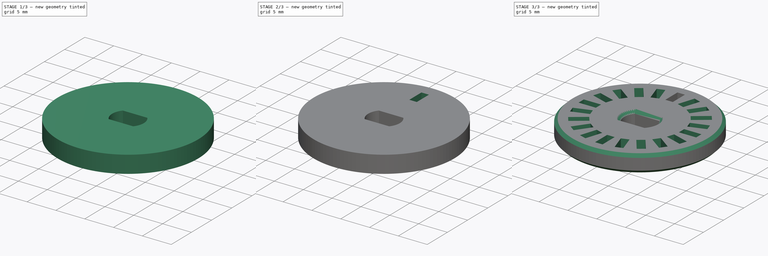
[diagram: build sequence overview — one tinted view per stage of 3, left to right]
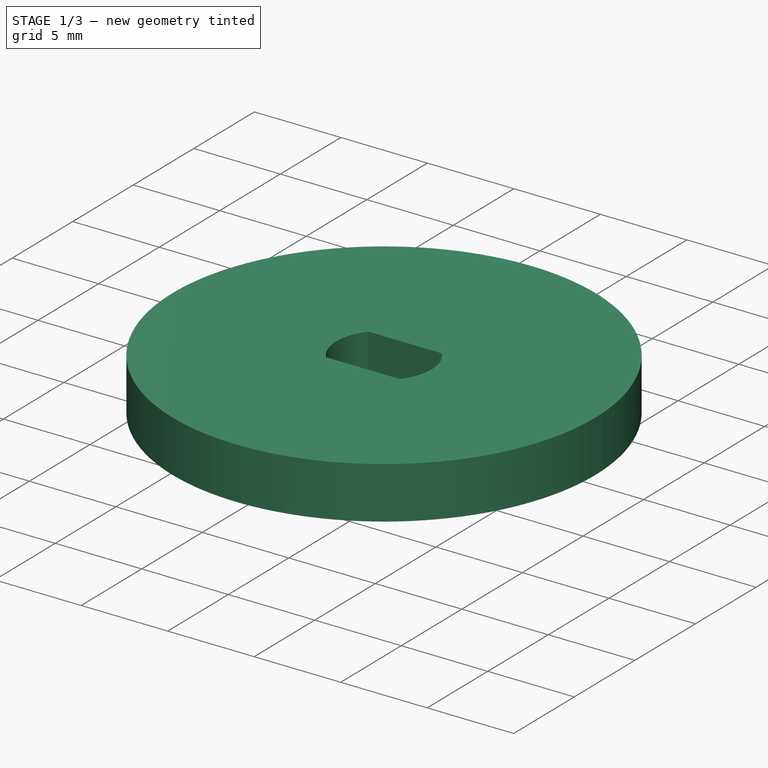
[diagram: stage 1 of 3 — iso view after this stage's code; geometry added in this stage tinted green]
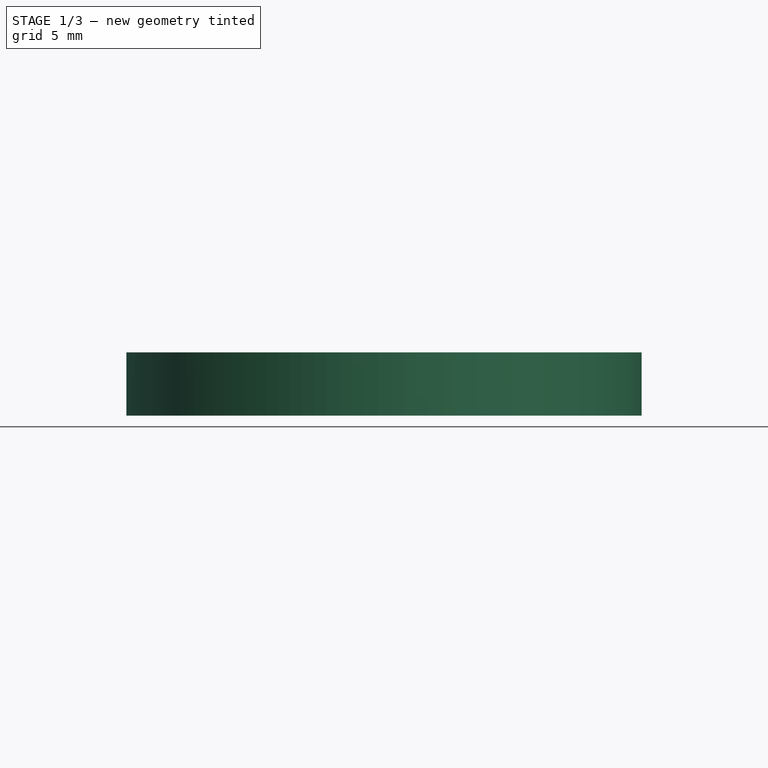
[diagram: stage 1 of 3 — front view after this stage's code; geometry added in this stage tinted green]
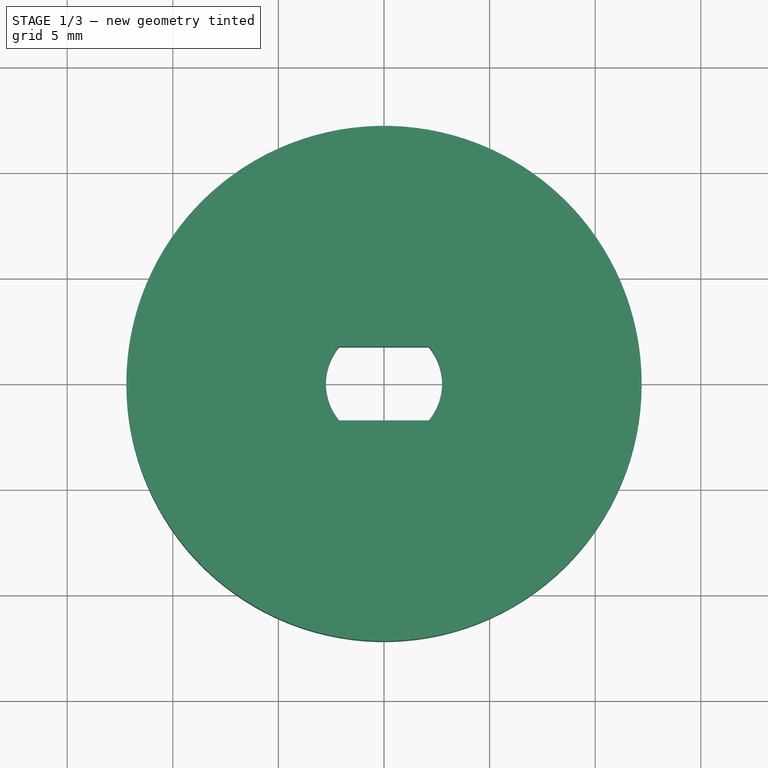
[diagram: stage 1 of 3 — top view after this stage's code; geometry added in this stage tinted green]
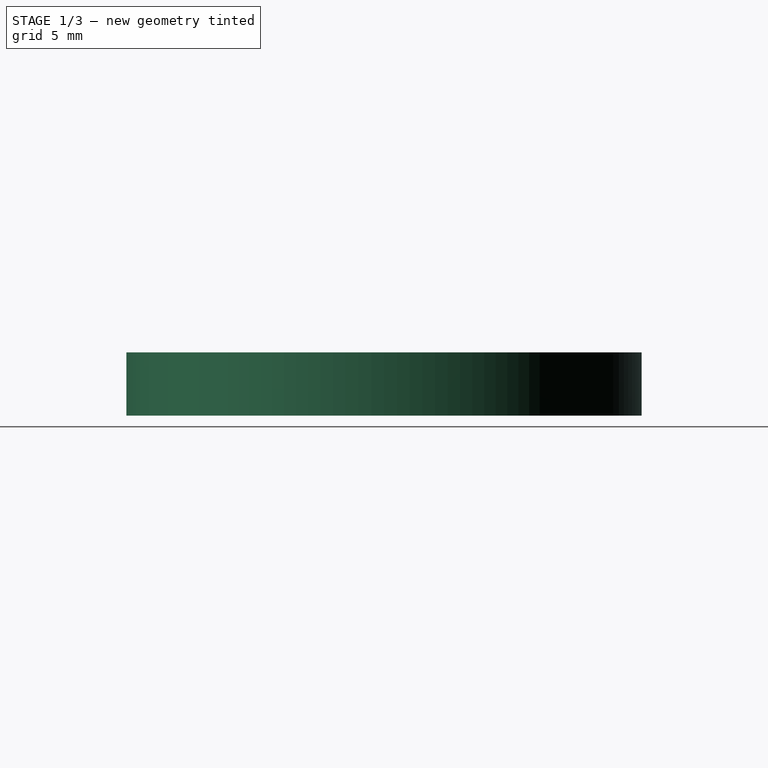
[diagram: stage 1 of 3 — right view after this stage's code; geometry added in this stage tinted green]
FCSTD DOCUMENT  (FreeCAD 0.16R6673 (Git))
Label: tachoDiscSmall
License: All rights reserved
LicenseURL: http://en.wikipedia.org/wiki/All_rights_reserved
objects: Sketcher::SketchObject×3, PartDesign::Pocket×2, PartDesign::Pad×1, PartDesign::PolarPattern×1, PartDesign::Chamfer×1
note: 11 computed .brp shape members not serialized (recipe doc carries the construction recipe); baked Part::Feature solids carry a one-line shape summary decoded from their .brp

FEATURE [Sketcher::SketchObject] Sketch002
  sketch-geometry (2):
    g0: LineSegment [constr] StartX=0 StartY=0 StartZ=0 EndX=0 EndY=12.2 EndZ=0
    g1: Circle CenterX=0 CenterY=0 CenterZ=0 NormalX=0 NormalY=0 NormalZ=1 Radius=12.2
  constraints (5):
    c: Coincident(g0,g-1)
    c: Vertical(g0)
    c: Distance(g0) = 12.2
    c: Coincident(g1,g-1)
    c: PointOnObject(g0,g1)
FEATURE [PartDesign::Pad] Pad  label="Disc"
  Length = 3
  Length2 = 100
  Sketch = -> Sketch002
  Type = 0
FEATURE [Sketcher::SketchObject] Sketch  label="MountHoleSketch"
  Placement = pos=(0,0,3) rot=(0,0,1;0rad)
  Support = -> Pad [Face3]
  sketch-geometry (5):
    g0: LineSegment [constr] StartX=0 StartY=-1.75 StartZ=0 EndX=0 EndY=1.75 EndZ=0
    g1: LineSegment StartX=-2.12132 StartY=1.75 StartZ=0 EndX=2.12132 EndY=1.75 EndZ=0
    g2: LineSegment StartX=-2.12132 StartY=-1.75 StartZ=0 EndX=2.12132 EndY=-1.75 EndZ=0
    g3: ArcOfCircle CenterX=0 CenterY=0 CenterZ=0 NormalX=0 NormalY=0 NormalZ=1 Radius=2.75 StartAngle=5.59341 EndAngle=6.97296
    g4: ArcOfCircle CenterX=0 CenterY=0 CenterZ=0 NormalX=0 NormalY=0 NormalZ=1 Radius=2.75 StartAngle=2.45182 EndAngle=3.83137
  constraints (13):
    c: Vertical(g0)
    c: Distance(g0) = 3.5
    c: Symmetric(g0,g0,g-1)
    c: Symmetric(g1,g1,g0)
    c: Symmetric(g2,g2,g0)
    c: Coincident(g4,g-1)
    c: Coincident(g3,g-1)
    c: Coincident(g3,g1)
    c: Coincident(g3,g2)
    c: Coincident(g2,g4)
    c: Coincident(g1,g4)
    c: Radius(g3) = 2.75
    c: Horizontal(g1)
FEATURE [PartDesign::Pocket] Pocket  label="MountHole"
  Length = 5
  Sketch = -> Sketch
  Type = 1
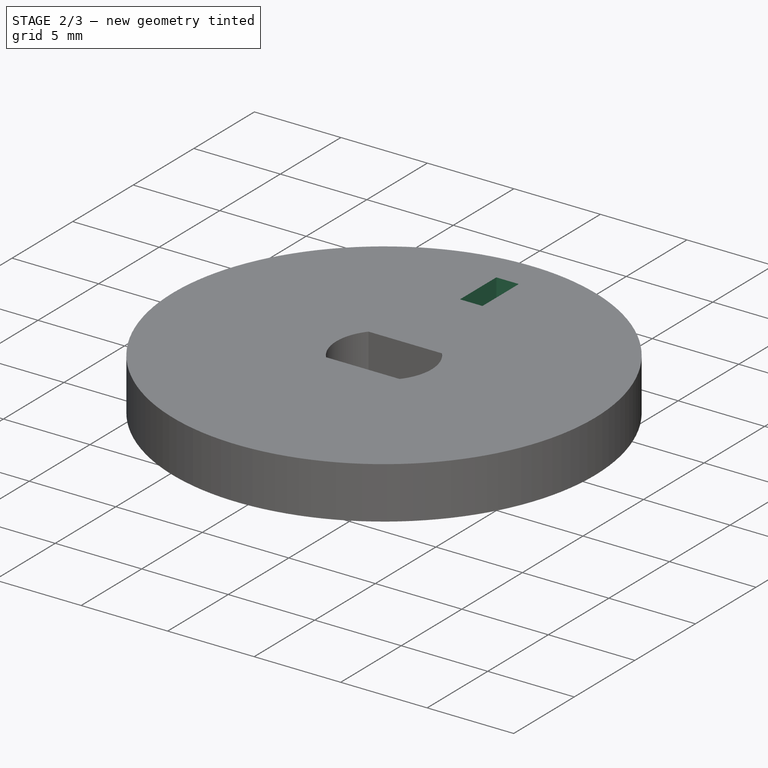
[diagram: stage 2 of 3 — iso view after this stage's code; geometry added in this stage tinted green]
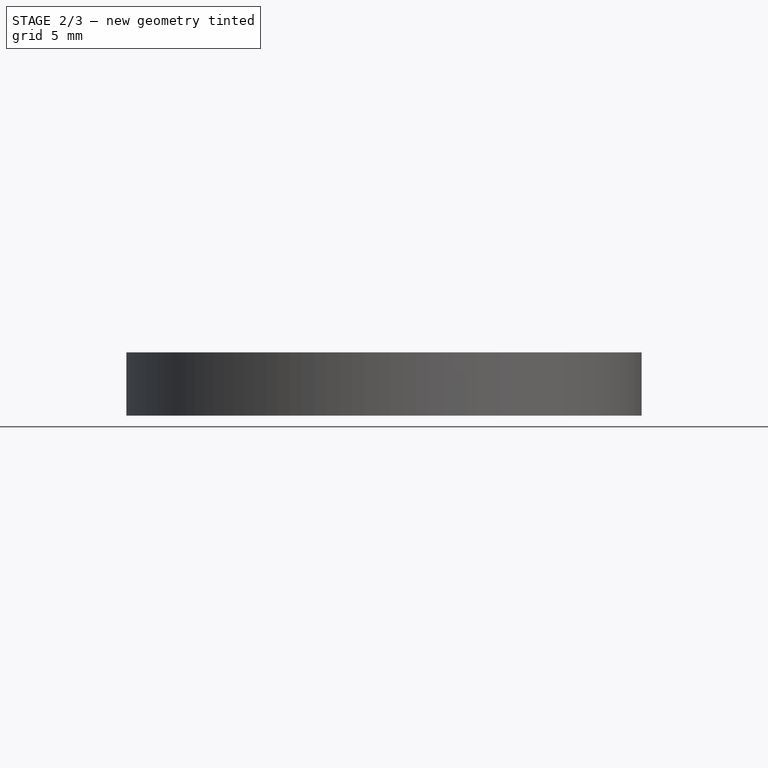
[diagram: stage 2 of 3 — front view after this stage's code; geometry added in this stage tinted green]
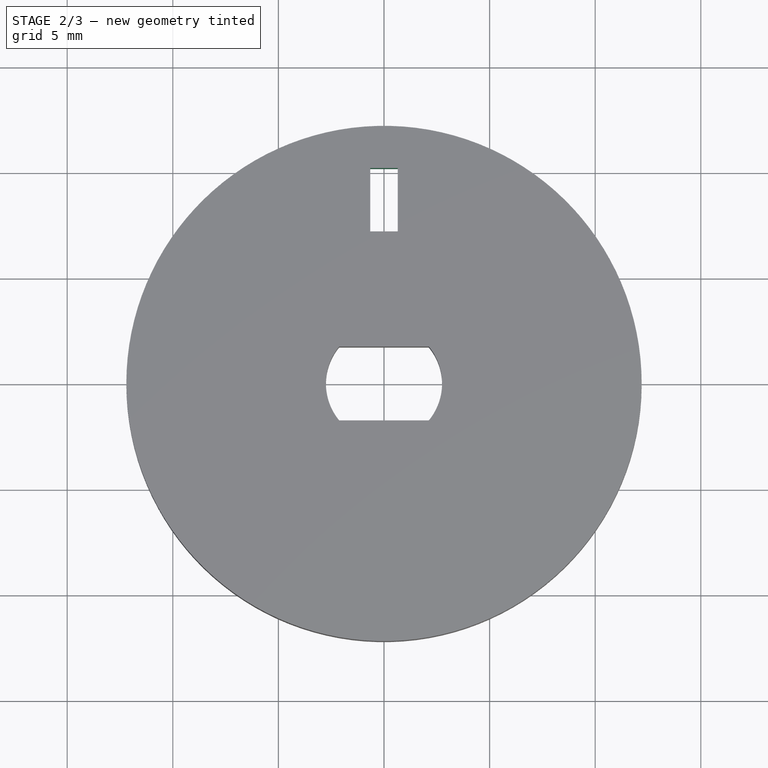
[diagram: stage 2 of 3 — top view after this stage's code; geometry added in this stage tinted green]
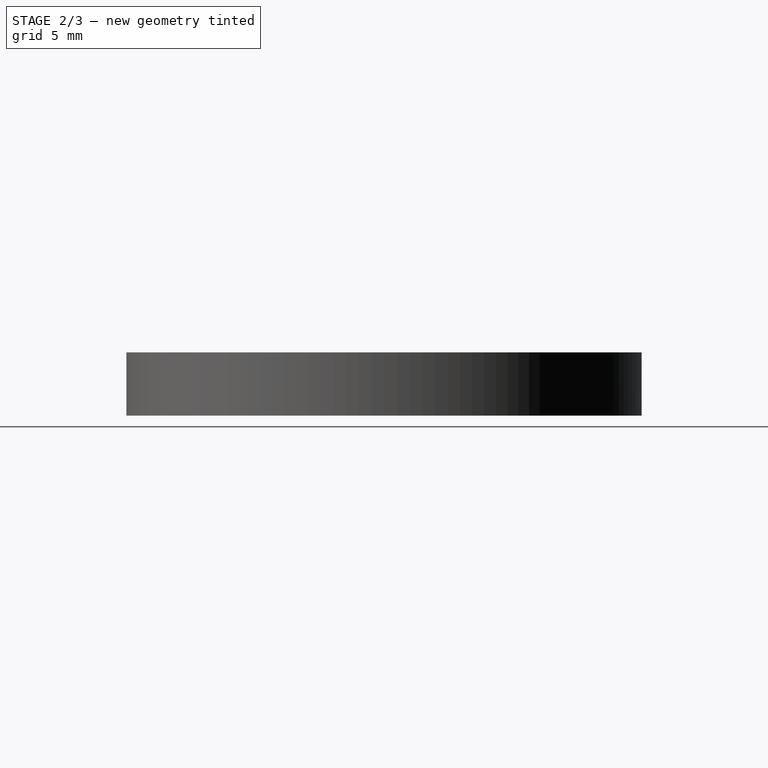
[diagram: stage 2 of 3 — right view after this stage's code; geometry added in this stage tinted green]
FEATURE [Sketcher::SketchObject] Sketch003  label="HoleSketch"
  ExternalGeometry = -> [Pocket]
  Placement = pos=(0,0,3) rot=(0,0,1;0rad)
  Support = -> Pocket [Face3]
  sketch-geometry (5):
    g0: LineSegment [constr] StartX=-4e-12 StartY=12.2 StartZ=0 EndX=-4e-12 EndY=10.2 EndZ=0
    g1: LineSegment StartX=-0.65 StartY=10.2 StartZ=0 EndX=0.65 EndY=10.2 EndZ=0
    g2: LineSegment StartX=0.65 StartY=10.2 StartZ=0 EndX=0.65 EndY=7.2 EndZ=0
    g3: LineSegment StartX=0.65 StartY=7.2 StartZ=0 EndX=-0.65 EndY=7.2 EndZ=0
    g4: LineSegment StartX=-0.65 StartY=7.2 StartZ=0 EndX=-0.65 EndY=10.2 EndZ=0
  constraints (14):
    c: Vertical(g0)
    c: Distance(g0) = 2
    c: Perpendicular(g0,g-3) = 4.71239
    c: Coincident(g1,g2)
    c: Coincident(g2,g3)
    c: Coincident(g3,g4)
    c: Coincident(g4,g1)
    c: Horizontal(g1)
    c: Horizontal(g3)
    c: Vertical(g2)
    c: Vertical(g4)
    c: DistanceX(g1) = 1.3
    c: DistanceY(g2) = -3
    c: Symmetric(g1,g1,g0)
FEATURE [PartDesign::Pocket] Pocket001  label="Hole"
  Length = 5
  Sketch = -> Sketch003
  Type = 1
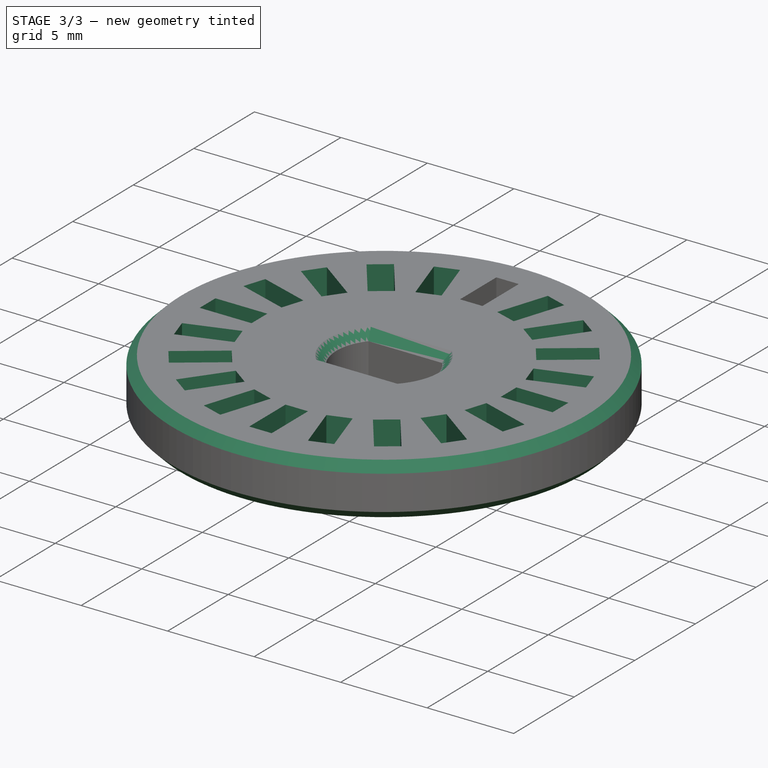
[diagram: stage 3 of 3 — iso view after this stage's code; geometry added in this stage tinted green]
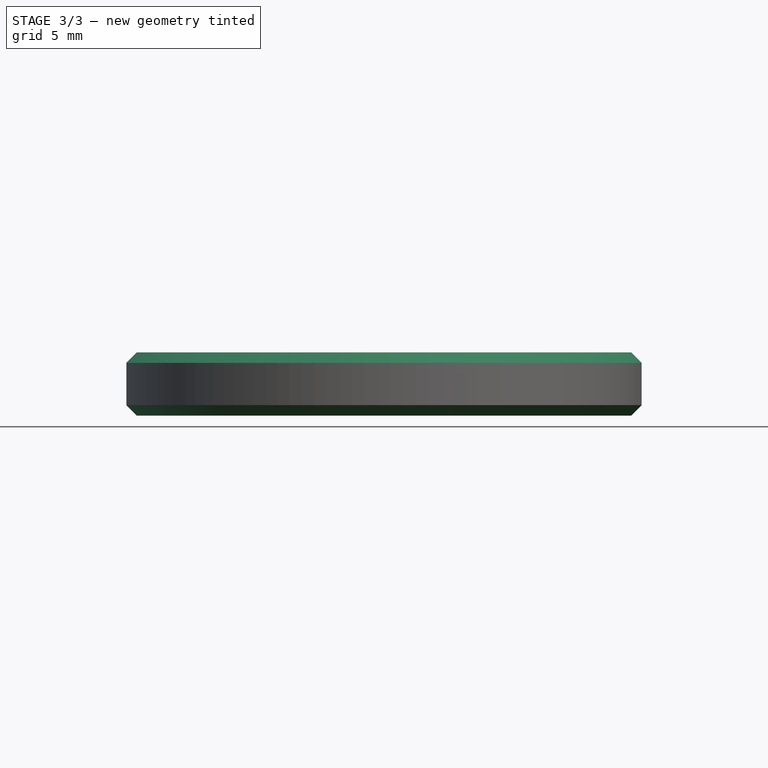
[diagram: stage 3 of 3 — front view after this stage's code; geometry added in this stage tinted green]
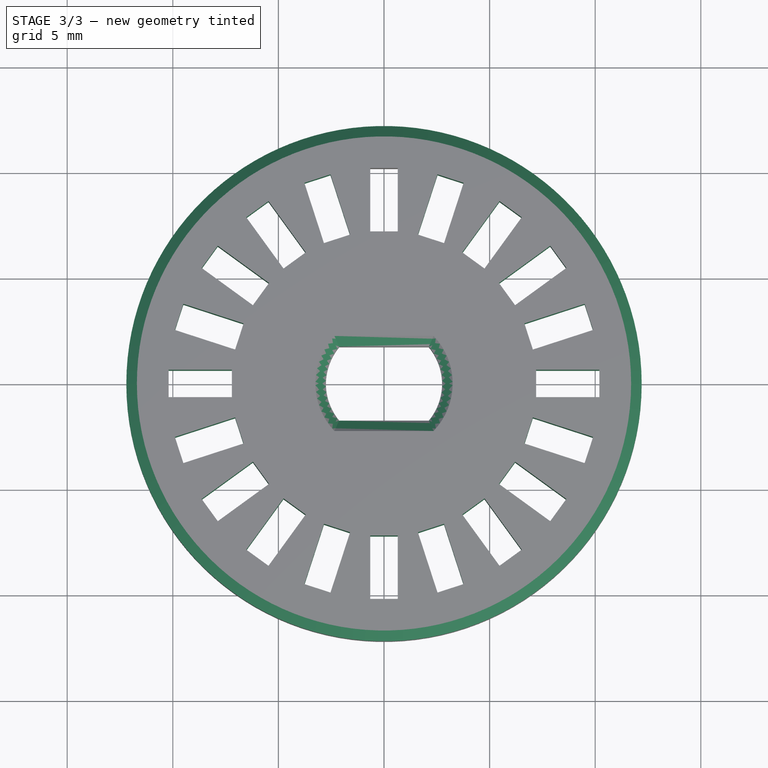
[diagram: stage 3 of 3 — top view after this stage's code; geometry added in this stage tinted green]
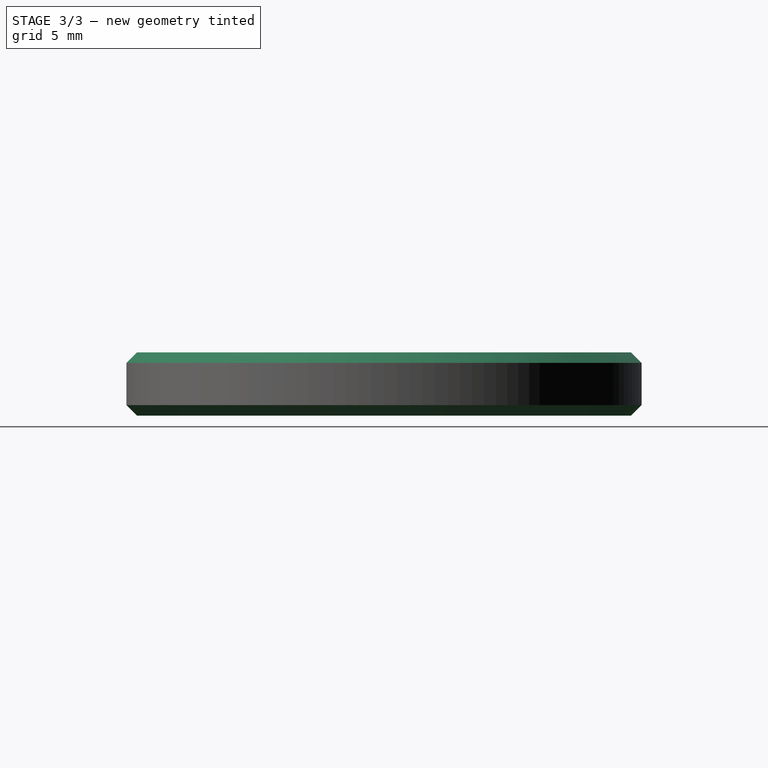
[diagram: stage 3 of 3 — right view after this stage's code; geometry added in this stage tinted green]
FEATURE [PartDesign::PolarPattern] PolarPattern
  Angle = 360
  Axis = -> Sketch003 [N_Axis]
  Occurrences = 20
  Originals = -> [Pocket001]
FEATURE [PartDesign::Chamfer] Chamfer
  Base = -> PolarPattern [Edge157,Edge156,Edge158,Edge159,Edge3,Edge2,Edge38,Edge36,Edge39,Edge37]
  Size = 0.5
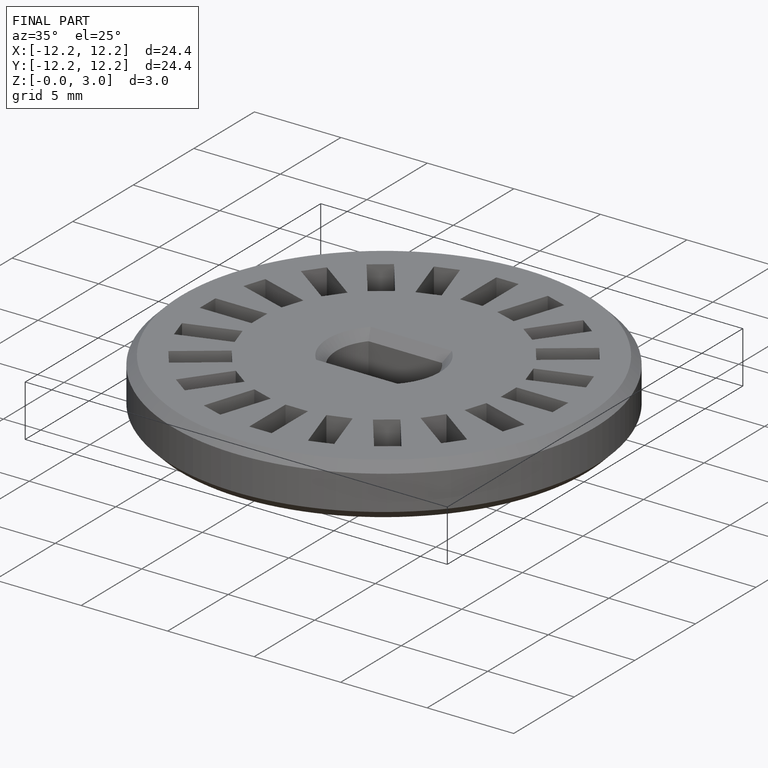
[diagram: finished part — iso view with bounding-box wireframe]
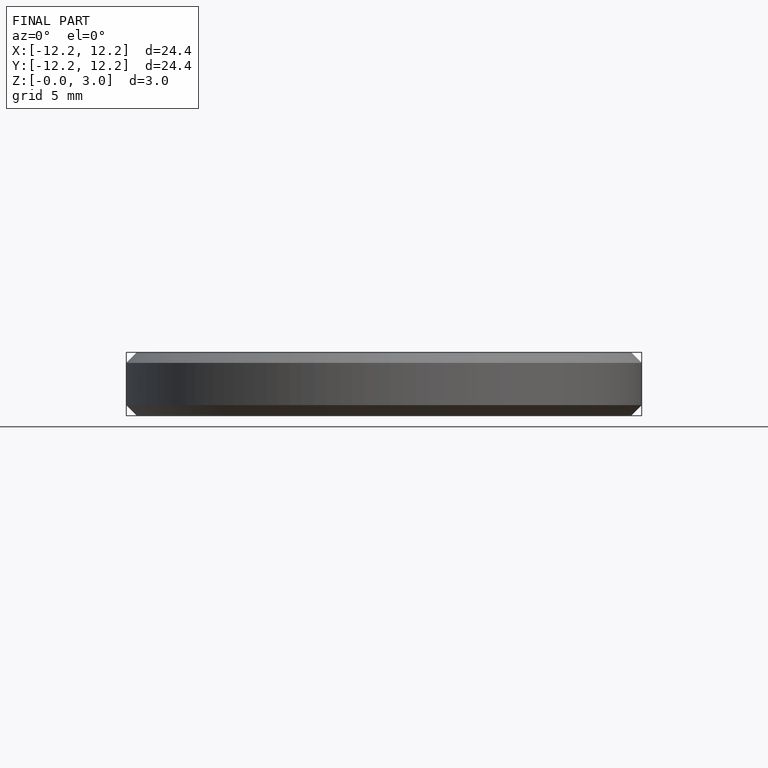
[diagram: finished part — front view with bounding-box wireframe]
